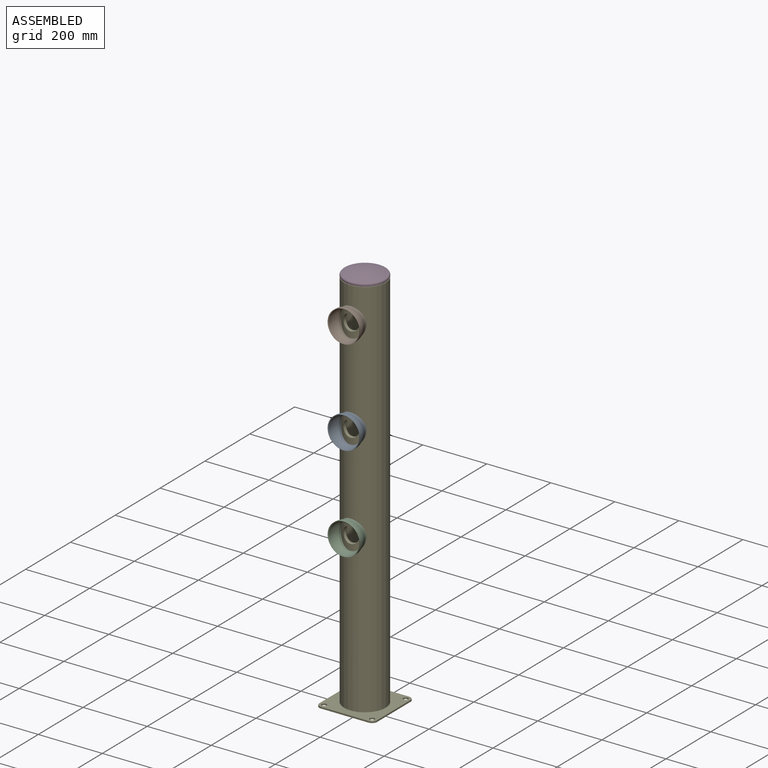
[diagram: assembled view]
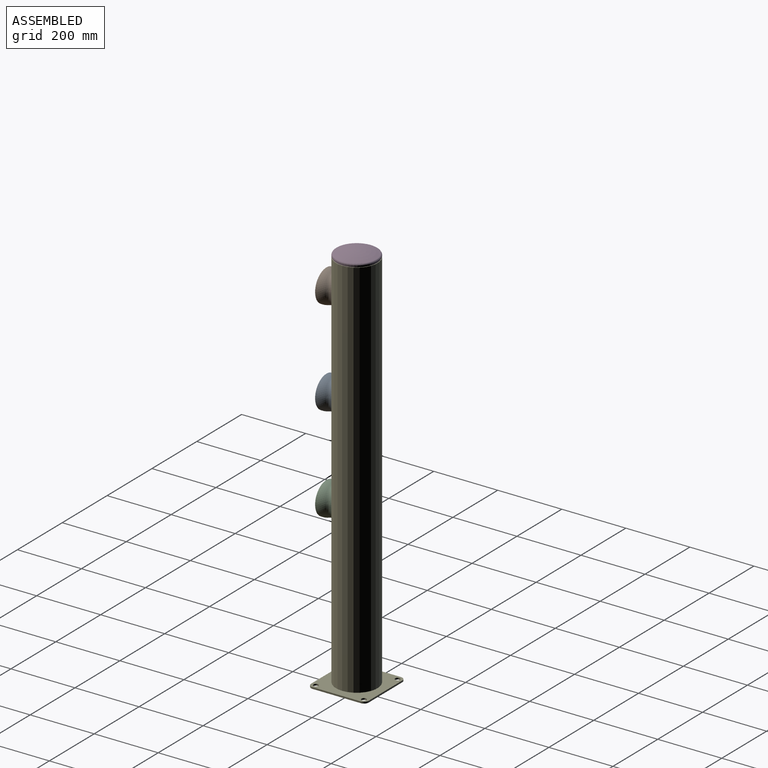
[diagram: assembled view, second angle]
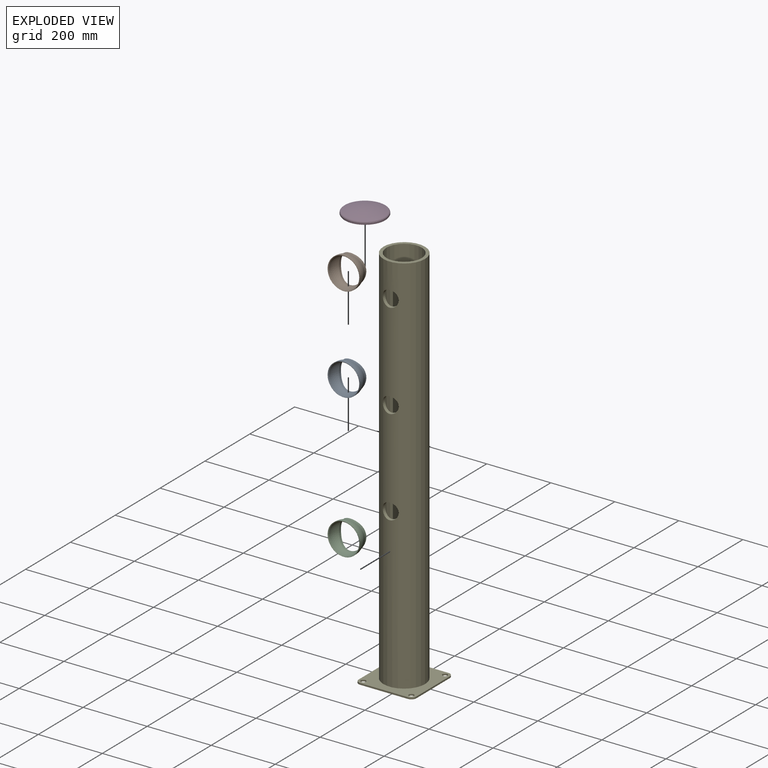
[diagram: exploded view]
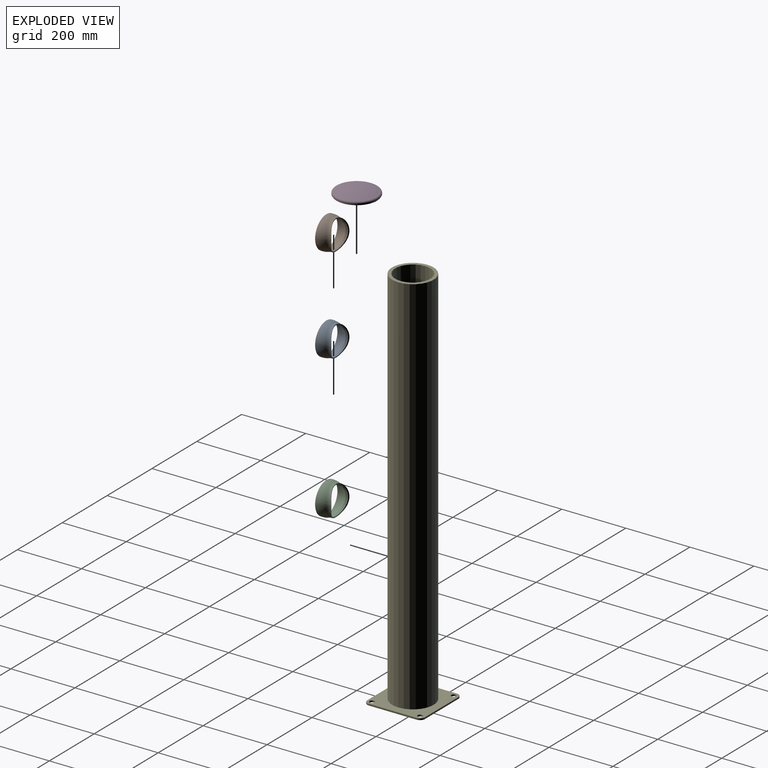
[diagram: exploded view, second angle]
ASSEMBLY  parts=5 mates=4
PART A: 10 faces, bbox 43.9x100x100 mm
  f0: cylinder r=50mm len=100mm, axis (-1,0,0), area 1570.8mm2, adj f1,f2
  f1: plane 100x100mm, normal (1,0,0), area 168.7mm2, adj f0,f8
  f2: sphere r=50mm, area 6397.5mm2, adj f0,f9
  f3: extruded ~93.67x80.46mm, area 975.8mm2, adj f4,f9
  f4: cylinder r=65mm len=93.68mm, axis (0,0,1), area 760mm2, adj f3,f7
  f5: cylinder r=47.46mm len=94.92mm, axis (-1,0,0), area 894.6mm2, adj f6,f8
  f6: sphere r=47.46mm, area 6964mm2, adj f5,f7
  f7: extruded ~88.48x75.32mm, area 2093mm2, adj f4,f6
  f8: cone r=49.46mm half-angle=45deg, axis (1,0,0), area 861.2mm2, adj f1,f5
  f9: bspline ~95.51x86.06mm, area 2423.7mm2, adj f2,f3
PART B: same geometry as A
PART C: same geometry as A
PART D: 6 faces, bbox 140.7x140.7x20 mm
  f0: cylinder r=63mm len=126mm, axis (0,0,1), area 1187.5mm2, adj f1,f5
  f1: plane 126x126mm, normal (0,0,-1), area 12469mm2, adj f0
  f2: sphere r=200mm, area 12192.9mm2, adj f3
  f3: torus R=60mm, axis (0,0,1), area 2520.8mm2, adj f2,f4
  f4: cylinder r=65mm len=130mm, axis (0,0,1), area 1037.3mm2, adj f3,f5
  f5: plane 130x130mm, normal (0,0,-1), area 804.2mm2, adj f0,f4
PART E: 21 faces, bbox 180x180x1205 mm
  f0: cylinder r=65mm len=1200mm, axis (0,0,-1), area 484087.2mm2, adj f6,f12,f18,f19,f20
  f1: cylinder r=55mm len=1195mm, axis (0,0,-1), area 406907.1mm2, adj f12,f13,f18,f19,f20
  f2: plane 150x5mm, normal (1,0,0), area 750mm2, adj f6,f7,f8,f11
  f3: plane 150x5mm, normal (0,1,0), area 750mm2, adj f6,f7,f8,f9
  f4: plane 150x5mm, normal (-1,0,0), area 750mm2, adj f6,f7,f9,f10
  f5: plane 150x5mm, normal (0,-1,0), area 750mm2, adj f6,f7,f10,f11
  f6: plane 180x180mm, normal (0,0,1), area 18178.9mm2, adj f0,f2,f3,f4,f5,f8,f9,f10
  f7: plane 180x180mm, normal (0,0,-1), area 31452.1mm2, adj f2,f3,f4,f5,f8,f9,f10,f11
  f8: cylinder r=15mm len=15mm, axis (0,0,1), area 117.8mm2, adj f2,f3,f6,f7
  f9: cylinder r=15mm len=15mm, axis (0,0,-1), area 117.8mm2, adj f3,f4,f6,f7
  f10: cylinder r=15mm len=15mm, axis (0,0,1), area 117.8mm2, adj f4,f5,f6,f7
  f11: cylinder r=15mm len=15mm, axis (0,0,-1), area 117.8mm2, adj f2,f5,f6,f7
  f12: plane 130x130mm, normal (0,0,1), area 3769.9mm2, adj f0,f1
  f13: plane 110x110mm, normal (0,0,1), area 9503.3mm2, adj f1
  f14: cylinder r=7.75mm len=15.5mm, axis (0,0,1), area 243.5mm2, adj f6,f7
  f15: cylinder r=7.75mm len=15.5mm, axis (0,0,1), area 243.5mm2, adj f6,f7
  f16: cylinder r=7.75mm len=15.5mm, axis (0,0,1), area 243.5mm2, adj f6,f7
  f17: cylinder r=7.75mm len=15.5mm, axis (0,0,1), area 243.5mm2, adj f6,f7
  f18: cylinder r=25mm len=50mm, axis (0,1,0), area 1647.1mm2, adj f0,f1
  f19: cylinder r=25mm len=50mm, axis (0,1,0), area 1647.1mm2, adj f0,f1
  f20: cylinder r=25mm len=50mm, axis (0,1,0), area 1647.1mm2, adj f0,f1
PLACE A rot(axis=(0,0,-1),90deg) t=(0,0,800)mm
PLACE B rot(axis=(0,0,-1),90deg) t=(0,0,1100)mm
PLACE C rot(axis=(0,0,-1),90deg) t=(0,0,500)mm
PLACE D t=(0,0,1205)mm
PLACE E at identity
MATE fastened C.f4 <-> E.f0  axis (0,0,1) through (0,0,500)mm
MATE fastened D.f0 <-> E.f0  axis (0,0,1) through (0,0,1205)mm
MATE fastened B.f4 <-> E.f0  axis (0,0,1) through (0,0,1100)mm
MATE fastened A.f4 <-> E.f0  axis (0,0,1) through (0,0,800)mm
